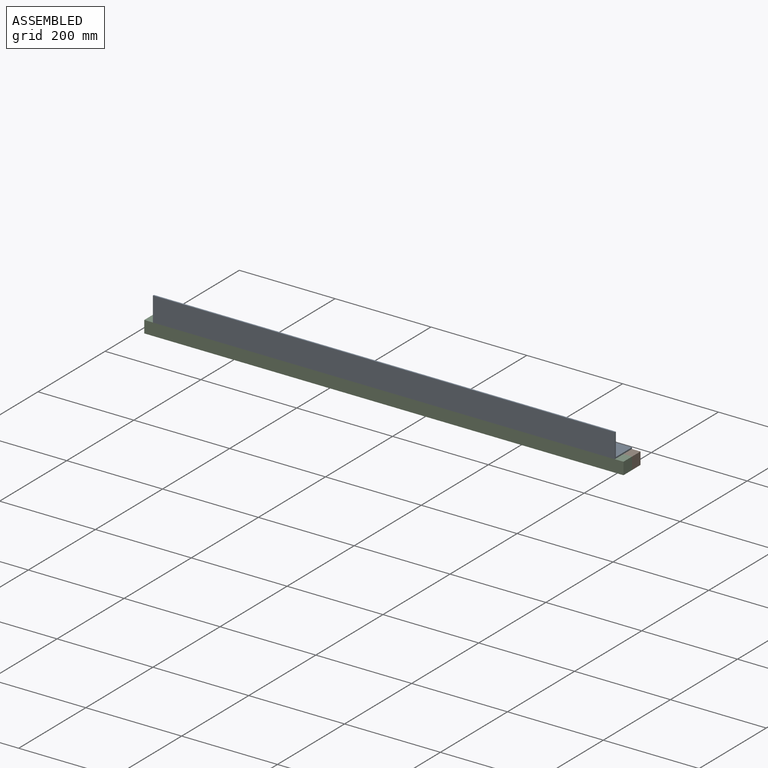
[diagram: assembled view]
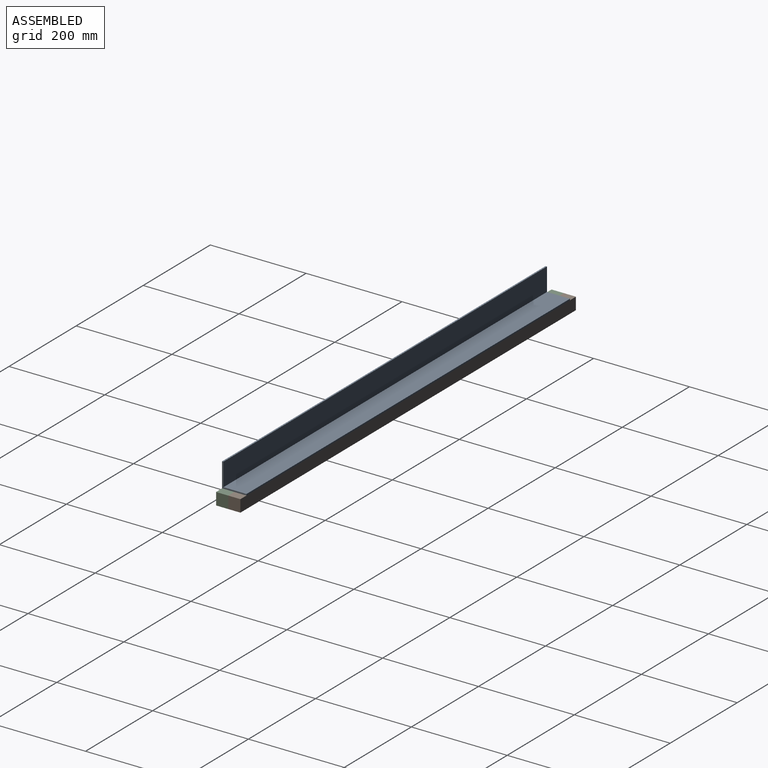
[diagram: assembled view, second angle]
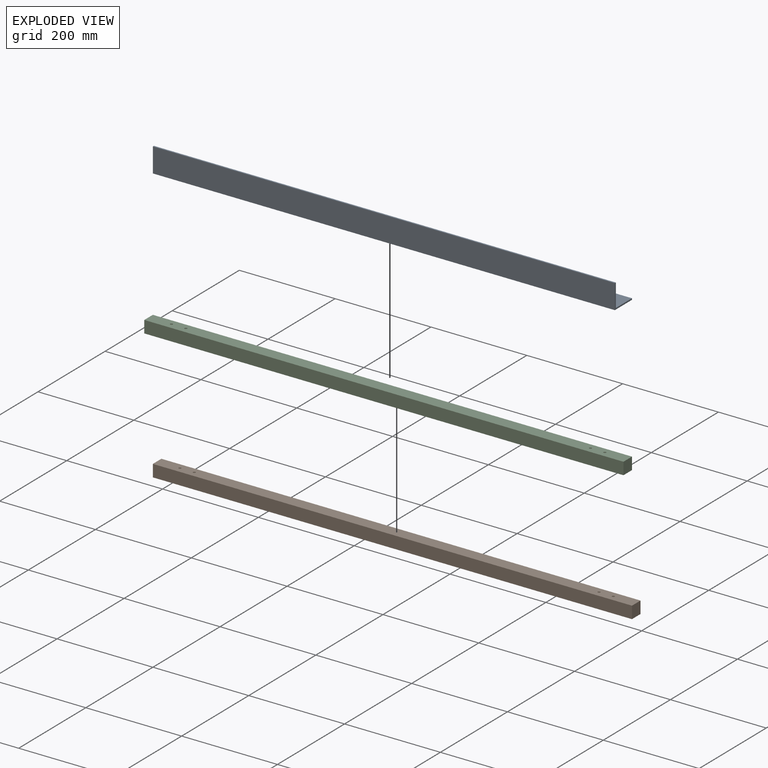
[diagram: exploded view]
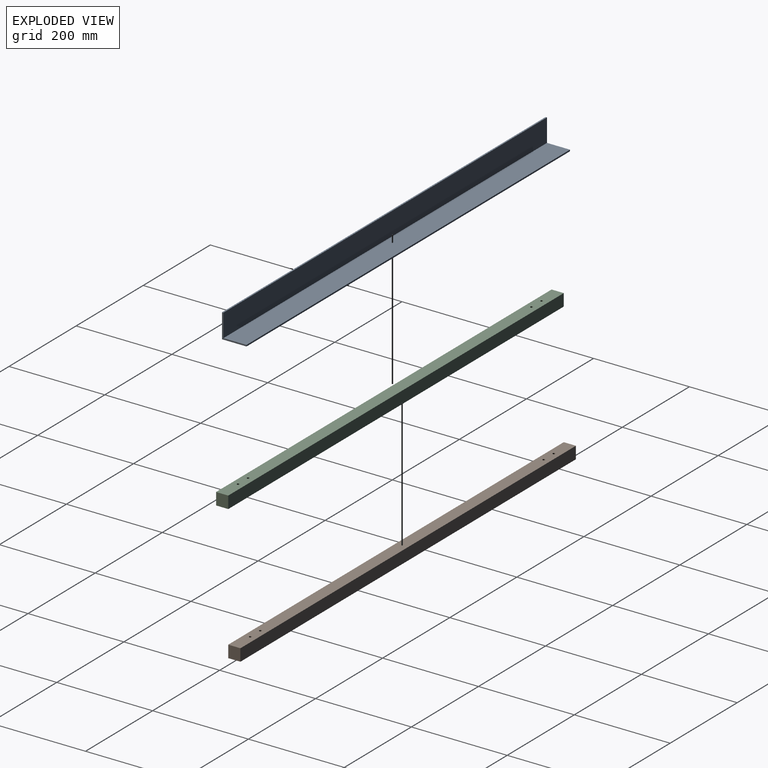
[diagram: exploded view, second angle]
ASSEMBLY  parts=3 mates=2
PART A: 8 faces, bbox 964.2x51x51 mm
  f0: plane 964.15x48mm, normal (0,1,0), area 46279.2mm2, adj f1,f5,f6,f7
  f1: plane 964.15x3mm, normal (0,0,1), area 2892.5mm2, adj f0,f2,f6,f7
  f2: plane 964.15x51mm, normal (0,-1,0), area 49171.7mm2, adj f1,f3,f6,f7
  f3: plane 964.15x51mm, normal (0,0,-1), area 49171.7mm2, adj f2,f4,f6,f7
  f4: plane 964.15x3mm, normal (0,1,0), area 2892.5mm2, adj f3,f5,f6,f7
  f5: plane 964.15x48mm, normal (0,0,1), area 46279.2mm2, adj f0,f4,f6,f7
  f6: plane 51x51mm, normal (1,0,0), area 297mm2, adj f0,f1,f2,f3,f4,f5
  f7: plane 51x51mm, normal (-1,0,0), area 297mm2, adj f0,f1,f2,f3,f4,f5
PART B: 10 faces, bbox 1000x25.4x25.4 mm
  f0: plane 25.4x25.4mm, normal (-1,0,0), area 645.2mm2, adj f1,f4,f8,f9
  f1: plane 1000x25.4mm, normal (0,-1,0), area 25400mm2, adj f0,f2,f8,f9
  f2: plane 25.4x25.4mm, normal (1,0,0), area 645.2mm2, adj f1,f4,f8,f9
  f3: cylinder r=2.5mm len=25.4mm, axis (0,0,-1), area 399mm2, adj f8,f9
  f4: plane 1000x25.4mm, normal (0,1,0), area 25400mm2, adj f0,f2,f8,f9
  f5: cylinder r=2.5mm len=25.4mm, axis (0,0,-1), area 399mm2, adj f8,f9
  f6: cylinder r=2.5mm len=25.4mm, axis (0,0,-1), area 399mm2, adj f8,f9
  f7: cylinder r=2.5mm len=25.4mm, axis (0,0,-1), area 399mm2, adj f8,f9
  f8: plane 1000x25.4mm, normal (0,0,1), area 25321.5mm2, adj f0,f1,f2,f3,f4,f5,f6,f7
  f9: plane 1000x25.4mm, normal (0,0,-1), area 25321.5mm2, adj f0,f1,f2,f3,f4,f5,f6,f7
PART C: same geometry as B
PLACE A t=(78.02,-115.09,-78.96)mm
PLACE B t=(-42.12,-151.62,-104.36)mm
PLACE C t=(-42.12,-177.02,-104.36)mm
MATE fastened B.f8 <-> A.f3  axis (0,0,1) through (78.02,2.53,-78.96)mm
MATE fastened B.f1 <-> C.f4  axis (0,-1,0) through (78.02,2.53,-91.66)mm
